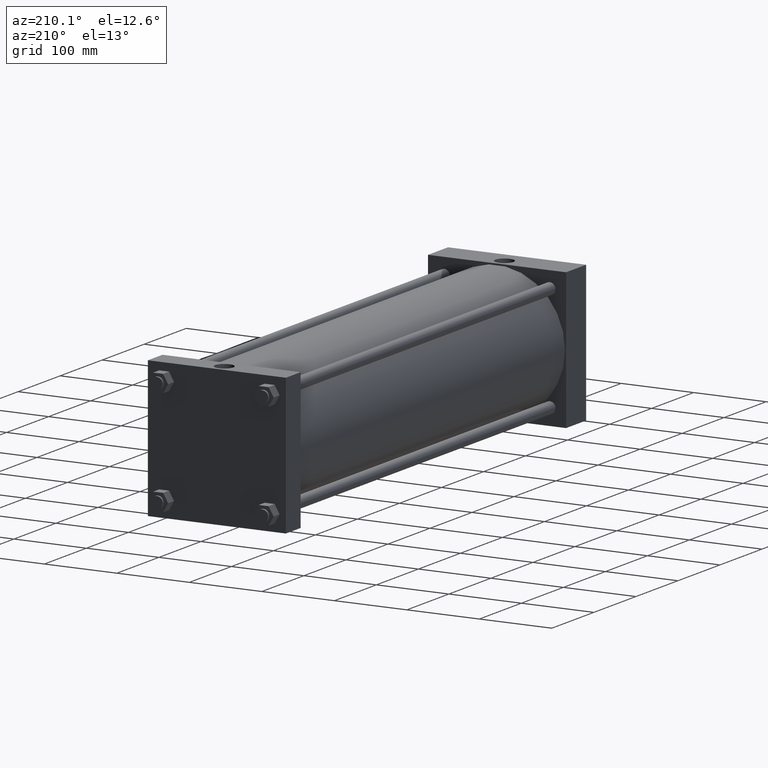
[diagram: clean part render]
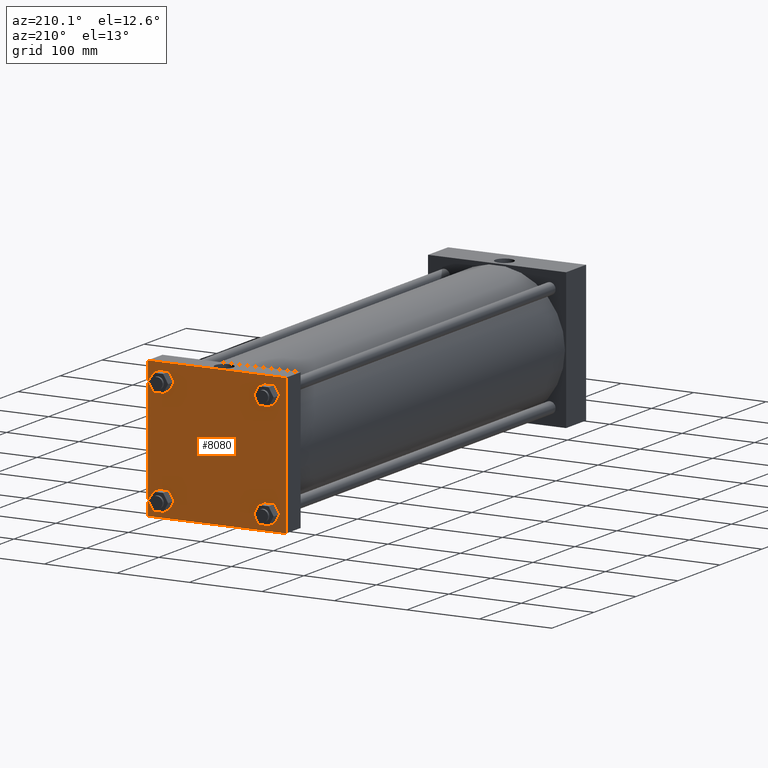
[diagram: same view with one face highlighted and labeled with its STEP entity id]
A machine part, auxiliary view. The second image highlights one B-rep face of the part: STEP entity #8080.
In plain terms, the highlighted planar face has unit normal (0, -1, 0).
Its self-contained STEP definition (entity closure, byte-faithful):
#2416=FACE_OUTER_BOUND('',#2421,.T.);
#2417=FACE_BOUND('',#2422,.T.);
#2418=FACE_BOUND('',#2423,.T.);
#2419=FACE_BOUND('',#2424,.T.);
#2420=FACE_BOUND('',#2425,.T.);
#2421=EDGE_LOOP('',(#2426,#2427,#2428,#2429,#2430,#2431));
#2422=EDGE_LOOP('',(#2474,#2475,#2476,#2477,#2478,#2479));
#2423=EDGE_LOOP('',(#2522,#2523,#2524,#2525,#2526,#2527));
#2424=EDGE_LOOP('',(#2570,#2571,#2572,#2573));
#2425=EDGE_LOOP('',(#2602,#2603,#2604,#2605,#2606,#2607));
#2426=ORIENTED_EDGE('',*,*,#2432,.F.);
#2427=ORIENTED_EDGE('',*,*,#2441,.F.);
#2428=ORIENTED_EDGE('',*,*,#2448,.F.);
#2429=ORIENTED_EDGE('',*,*,#2455,.F.);
#2430=ORIENTED_EDGE('',*,*,#2462,.F.);
#2431=ORIENTED_EDGE('',*,*,#2469,.F.);
#2432=EDGE_CURVE('',#2437,#2438,#2433,.T.);
#2433=LINE('',#2434,#2435);
#2434=CARTESIAN_POINT('',(6.589691458E+001,7.620000000E+002,8.467724088E+001));
#2435=VECTOR('',#2436,1.0E+000);
#2436=DIRECTION('',(4.9999999836129E-001,0.0E+000,8.66025404730548E-001));
#2437=VERTEX_POINT('',#2439);
#2438=VERTEX_POINT('',#2440);
#2439=CARTESIAN_POINT('',(5.902285023E+001,7.620000000E+002,7.277100000E+001));
#2440=CARTESIAN_POINT('',(6.589691458E+001,7.620000000E+002,8.467724088E+001));
#2441=EDGE_CURVE('',#2446,#2437,#2442,.T.);
#2442=LINE('',#2443,#2444);
#2443=CARTESIAN_POINT('',(6.589691458E+001,7.620000000E+002,6.086475912E+001));
#2444=VECTOR('',#2445,1.0E+000);
#2445=DIRECTION('',(-4.99999998361291E-001,0.0E+000,
   8.66025404730548E-001));
#2446=VERTEX_POINT('',#2447);
#2447=CARTESIAN_POINT('',(6.589691458E+001,7.620000000E+002,6.086475912E+001));
#2448=EDGE_CURVE('',#2453,#2446,#2449,.T.);
#2449=LINE('',#2450,#2451);
#2450=CARTESIAN_POINT('',(6.589691458E+001,7.620000000E+002,6.086475912E+001));
#2451=VECTOR('',#2452,1.0E+000);
#2452=DIRECTION('',(-1.0E+000,0.0E+000,0.0E+000));
#2453=VERTEX_POINT('',#2454);
#2454=CARTESIAN_POINT('',(7.964508542E+001,7.620000000E+002,6.086475912E+001));
#2455=EDGE_CURVE('',#2460,#2453,#2456,.T.);
#2456=LINE('',#2457,#2458);
#2457=CARTESIAN_POINT('',(8.651914977E+001,7.620000000E+002,7.277100000E+001));
#2458=VECTOR('',#2459,1.0E+000);
#2459=DIRECTION('',(-4.9999999836129E-001,0.0E+000,
   -8.66025404730549E-001));
#2460=VERTEX_POINT('',#2461);
#2461=CARTESIAN_POINT('',(8.651914977E+001,7.620000000E+002,7.277100000E+001));
#2462=EDGE_CURVE('',#2467,#2460,#2463,.T.);
#2463=LINE('',#2464,#2465);
#2464=CARTESIAN_POINT('',(8.651914977E+001,7.620000000E+002,7.277100000E+001));
#2465=VECTOR('',#2466,1.0E+000);
#2466=DIRECTION('',(4.9999999836129E-001,0.0E+000,-8.66025404730548E-001));
#2467=VERTEX_POINT('',#2468);
#2468=CARTESIAN_POINT('',(7.964508542E+001,7.620000000E+002,8.467724088E+001));
#2469=EDGE_CURVE('',#2438,#2467,#2470,.T.);
#2470=LINE('',#2471,#2472);
#2471=CARTESIAN_POINT('',(6.589691458E+001,7.620000000E+002,8.467724088E+001));
#2472=VECTOR('',#2473,1.0E+000);
#2473=DIRECTION('',(1.0E+000,0.0E+000,0.0E+000));
#2474=ORIENTED_EDGE('',*,*,#2480,.F.);
#2475=ORIENTED_EDGE('',*,*,#2489,.F.);
#2476=ORIENTED_EDGE('',*,*,#2496,.F.);
#2477=ORIENTED_EDGE('',*,*,#2503,.F.);
#2478=ORIENTED_EDGE('',*,*,#2510,.F.);
#2479=ORIENTED_EDGE('',*,*,#2517,.F.);
#2480=EDGE_CURVE('',#2485,#2486,#2481,.T.);
#2481=LINE('',#2482,#2483);
#2482=CARTESIAN_POINT('',(-7.964508542E+001,7.620000000E+002,8.467724088E+001));
#2483=VECTOR('',#2484,1.0E+000);
#2484=DIRECTION('',(4.9999999836129E-001,0.0E+000,8.66025404730548E-001));
#2485=VERTEX_POINT('',#2487);
#2486=VERTEX_POINT('',#2488);
#2487=CARTESIAN_POINT('',(-8.651914977E+001,7.620000000E+002,7.277100000E+001));
#2488=CARTESIAN_POINT('',(-7.964508542E+001,7.620000000E+002,8.467724088E+001));
#2489=EDGE_CURVE('',#2494,#2485,#2490,.T.);
#2490=LINE('',#2491,#2492);
#2491=CARTESIAN_POINT('',(-7.964508542E+001,7.620000000E+002,6.086475912E+001));
#2492=VECTOR('',#2493,1.0E+000);
#2493=DIRECTION('',(-4.99999998361291E-001,0.0E+000,
   8.66025404730548E-001));
#2494=VERTEX_POINT('',#2495);
#2495=CARTESIAN_POINT('',(-7.964508542E+001,7.620000000E+002,6.086475912E+001));
#2496=EDGE_CURVE('',#2501,#2494,#2497,.T.);
#2497=LINE('',#2498,#2499);
#2498=CARTESIAN_POINT('',(-7.964508542E+001,7.620000000E+002,6.086475912E+001));
#2499=VECTOR('',#2500,1.0E+000);
#2500=DIRECTION('',(-1.0E+000,0.0E+000,0.0E+000));
#2501=VERTEX_POINT('',#2502);
#2502=CARTESIAN_POINT('',(-6.589691458E+001,7.620000000E+002,6.086475912E+001));
#2503=EDGE_CURVE('',#2508,#2501,#2504,.T.);
#2504=LINE('',#2505,#2506);
#2505=CARTESIAN_POINT('',(-5.902285023E+001,7.620000000E+002,7.277100000E+001));
#2506=VECTOR('',#2507,1.0E+000);
#2507=DIRECTION('',(-4.9999999836129E-001,0.0E+000,
   -8.66025404730549E-001));
#2508=VERTEX_POINT('',#2509);
#2509=CARTESIAN_POINT('',(-5.902285023E+001,7.620000000E+002,7.277100000E+001));
#2510=EDGE_CURVE('',#2515,#2508,#2511,.T.);
#2511=LINE('',#2512,#2513);
#2512=CARTESIAN_POINT('',(-5.902285023E+001,7.620000000E+002,7.277100000E+001));
#2513=VECTOR('',#2514,1.0E+000);
#2514=DIRECTION('',(4.9999999836129E-001,0.0E+000,-8.66025404730548E-001));
#2515=VERTEX_POINT('',#2516);
#2516=CARTESIAN_POINT('',(-6.589691458E+001,7.620000000E+002,8.467724088E+001));
#2517=EDGE_CURVE('',#2486,#2515,#2518,.T.);
#2518=LINE('',#2519,#2520);
#2519=CARTESIAN_POINT('',(-7.964508542E+001,7.620000000E+002,8.467724088E+001));
#2520=VECTOR('',#2521,1.0E+000);
#2521=DIRECTION('',(1.0E+000,0.0E+000,0.0E+000));
#2522=ORIENTED_EDGE('',*,*,#2528,.F.);
#2523=ORIENTED_EDGE('',*,*,#2537,.F.);
#2524=ORIENTED_EDGE('',*,*,#2544,.F.);
#2525=ORIENTED_EDGE('',*,*,#2551,.F.);
#2526=ORIENTED_EDGE('',*,*,#2558,.F.);
#2527=ORIENTED_EDGE('',*,*,#2565,.F.);
#2528=EDGE_CURVE('',#2533,#2534,#2529,.T.);
#2529=LINE('',#2530,#2531);
#2530=CARTESIAN_POINT('',(-7.964508542E+001,7.620000000E+002,-6.086475912E+001));
#2531=VECTOR('',#2532,1.0E+000);
#2532=DIRECTION('',(4.9999999836129E-001,0.0E+000,8.66025404730549E-001));
#2533=VERTEX_POINT('',#2535);
#2534=VERTEX_POINT('',#2536);
#2535=CARTESIAN_POINT('',(-8.651914977E+001,7.620000000E+002,-7.277100000E+001));
#2536=CARTESIAN_POINT('',(-7.964508542E+001,7.620000000E+002,-6.086475912E+001));
#2537=EDGE_CURVE('',#2542,#2533,#2538,.T.);
#2538=LINE('',#2539,#2540);
#2539=CARTESIAN_POINT('',(-7.964508542E+001,7.620000000E+002,-8.467724088E+001));
#2540=VECTOR('',#2541,1.0E+000);
#2541=DIRECTION('',(-4.99999998361291E-001,0.0E+000,
   8.66025404730548E-001));
#2542=VERTEX_POINT('',#2543);
#2543=CARTESIAN_POINT('',(-7.964508542E+001,7.620000000E+002,-8.467724088E+001));
#2544=EDGE_CURVE('',#2549,#2542,#2545,.T.);
#2545=LINE('',#2546,#2547);
#2546=CARTESIAN_POINT('',(-7.964508542E+001,7.620000000E+002,-8.467724088E+001));
#2547=VECTOR('',#2548,1.0E+000);
#2548=DIRECTION('',(-1.0E+000,0.0E+000,0.0E+000));
#2549=VERTEX_POINT('',#2550);
#2550=CARTESIAN_POINT('',(-6.589691458E+001,7.620000000E+002,-8.467724088E+001));
#2551=EDGE_CURVE('',#2556,#2549,#2552,.T.);
#2552=LINE('',#2553,#2554);
#2553=CARTESIAN_POINT('',(-5.902285023E+001,7.620000000E+002,-7.277100000E+001));
#2554=VECTOR('',#2555,1.0E+000);
#2555=DIRECTION('',(-4.99999998361289E-001,0.0E+000,
   -8.66025404730549E-001));
#2556=VERTEX_POINT('',#2557);
#2557=CARTESIAN_POINT('',(-5.902285023E+001,7.620000000E+002,-7.277100000E+001));
#2558=EDGE_CURVE('',#2563,#2556,#2559,.T.);
#2559=LINE('',#2560,#2561);
#2560=CARTESIAN_POINT('',(-5.902285023E+001,7.620000000E+002,-7.277100000E+001));
#2561=VECTOR('',#2562,1.0E+000);
#2562=DIRECTION('',(4.9999999836129E-001,0.0E+000,-8.66025404730548E-001));
#2563=VERTEX_POINT('',#2564);
#2564=CARTESIAN_POINT('',(-6.589691458E+001,7.620000000E+002,-6.086475912E+001));
#2565=EDGE_CURVE('',#2534,#2563,#2566,.T.);
#2566=LINE('',#2567,#2568);
#2567=CARTESIAN_POINT('',(-7.964508542E+001,7.620000000E+002,-6.086475912E+001));
#2568=VECTOR('',#2569,1.0E+000);
#2569=DIRECTION('',(1.0E+000,0.0E+000,0.0E+000));
#2570=ORIENTED_EDGE('',*,*,#2574,.F.);
#2571=ORIENTED_EDGE('',*,*,#2583,.T.);
#2572=ORIENTED_EDGE('',*,*,#2590,.F.);
#2573=ORIENTED_EDGE('',*,*,#2597,.F.);
#2574=EDGE_CURVE('',#2579,#2580,#2575,.T.);
#2575=LINE('',#2576,#2577);
#2576=CARTESIAN_POINT('',(9.525000000E+001,7.620000000E+002,-9.525000000E+001));
#2577=VECTOR('',#2578,1.0E+000);
#2578=DIRECTION('',(0.0E+000,0.0E+000,1.0E+000));
#2579=VERTEX_POINT('',#2581);
#2580=VERTEX_POINT('',#2582);
#2581=CARTESIAN_POINT('',(9.525000000E+001,7.620000000E+002,-9.525000000E+001));
#2582=CARTESIAN_POINT('',(9.525000000E+001,7.620000000E+002,9.525000000E+001));
#2583=EDGE_CURVE('',#2579,#2588,#2584,.T.);
#2584=LINE('',#2585,#2586);
#2585=CARTESIAN_POINT('',(9.525000000E+001,7.620000000E+002,-9.525000000E+001));
#2586=VECTOR('',#2587,1.0E+000);
#2587=DIRECTION('',(-1.0E+000,0.0E+000,0.0E+000));
#2588=VERTEX_POINT('',#2589);
#2589=CARTESIAN_POINT('',(-9.525000000E+001,7.620000000E+002,-9.525000000E+001));
#2590=EDGE_CURVE('',#2595,#2588,#2591,.T.);
#2591=LINE('',#2592,#2593);
#2592=CARTESIAN_POINT('',(-9.525000000E+001,7.620000000E+002,9.525000000E+001));
#2593=VECTOR('',#2594,1.0E+000);
#2594=DIRECTION('',(0.0E+000,0.0E+000,-1.0E+000));
#2595=VERTEX_POINT('',#2596);
#2596=CARTESIAN_POINT('',(-9.525000000E+001,7.620000000E+002,9.525000000E+001));
#2597=EDGE_CURVE('',#2580,#2595,#2598,.T.);
#2598=LINE('',#2599,#2600);
#2599=CARTESIAN_POINT('',(9.525000000E+001,7.620000000E+002,9.525000000E+001));
#2600=VECTOR('',#2601,1.0E+000);
#2601=DIRECTION('',(-1.0E+000,0.0E+000,0.0E+000));
#2602=ORIENTED_EDGE('',*,*,#2608,.F.);
#2603=ORIENTED_EDGE('',*,*,#2617,.F.);
#2604=ORIENTED_EDGE('',*,*,#2624,.F.);
#2605=ORIENTED_EDGE('',*,*,#2631,.F.);
#2606=ORIENTED_EDGE('',*,*,#2638,.F.);
#2607=ORIENTED_EDGE('',*,*,#2645,.F.);
#2608=EDGE_CURVE('',#2613,#2614,#2609,.T.);
#2609=LINE('',#2610,#2611);
#2610=CARTESIAN_POINT('',(7.964508542E+001,7.620000000E+002,-8.467724088E+001));
#2611=VECTOR('',#2612,1.0E+000);
#2612=DIRECTION('',(-4.9999999836129E-001,0.0E+000,
   -8.66025404730549E-001));
#2613=VERTEX_POINT('',#2615);
#2614=VERTEX_POINT('',#2616);
#2615=CARTESIAN_POINT('',(8.651914977E+001,7.620000000E+002,-7.277100000E+001));
#2616=CARTESIAN_POINT('',(7.964508542E+001,7.620000000E+002,-8.467724088E+001));
#2617=EDGE_CURVE('',#2622,#2613,#2618,.T.);
#2618=LINE('',#2619,#2620);
#2619=CARTESIAN_POINT('',(7.964508542E+001,7.620000000E+002,-6.086475912E+001));
#2620=VECTOR('',#2621,1.0E+000);
#2621=DIRECTION('',(4.99999998361291E-001,0.0E+000,
   -8.66025404730548E-001));
#2622=VERTEX_POINT('',#2623);
#2623=CARTESIAN_POINT('',(7.964508542E+001,7.620000000E+002,-6.086475912E+001));
#2624=EDGE_CURVE('',#2629,#2622,#2625,.T.);
#2625=LINE('',#2626,#2627);
#2626=CARTESIAN_POINT('',(7.964508542E+001,7.620000000E+002,-6.086475912E+001));
#2627=VECTOR('',#2628,1.0E+000);
#2628=DIRECTION('',(1.0E+000,0.0E+000,0.0E+000));
#2629=VERTEX_POINT('',#2630);
#2630=CARTESIAN_POINT('',(6.589691458E+001,7.620000000E+002,-6.086475912E+001));
#2631=EDGE_CURVE('',#2636,#2629,#2632,.T.);
#2632=LINE('',#2633,#2634);
#2633=CARTESIAN_POINT('',(5.902285023E+001,7.620000000E+002,-7.277100000E+001));
#2634=VECTOR('',#2635,1.0E+000);
#2635=DIRECTION('',(4.99999998361289E-001,0.0E+000,8.66025404730549E-001));
#2636=VERTEX_POINT('',#2637);
#2637=CARTESIAN_POINT('',(5.902285023E+001,7.620000000E+002,-7.277100000E+001));
#2638=EDGE_CURVE('',#2643,#2636,#2639,.T.);
#2639=LINE('',#2640,#2641);
#2640=CARTESIAN_POINT('',(5.902285023E+001,7.620000000E+002,-7.277100000E+001));
#2641=VECTOR('',#2642,1.0E+000);
#2642=DIRECTION('',(-4.9999999836129E-001,0.0E+000,8.66025404730548E-001));
#2643=VERTEX_POINT('',#2644);
#2644=CARTESIAN_POINT('',(6.589691458E+001,7.620000000E+002,-8.467724088E+001));
#2645=EDGE_CURVE('',#2614,#2643,#2646,.T.);
#2646=LINE('',#2647,#2648);
#2647=CARTESIAN_POINT('',(7.964508542E+001,7.620000000E+002,-8.467724088E+001));
#2648=VECTOR('',#2649,1.0E+000);
#2649=DIRECTION('',(-1.0E+000,0.0E+000,0.0E+000));
#2650=PLANE('',#2651);
#2651=AXIS2_PLACEMENT_3D('',#2652,#2653,#2654);
#2652=CARTESIAN_POINT('',(9.525000000E+001,7.620000000E+002,-9.525000000E+001));
#2653=DIRECTION('',(0.0E+000,-1.0E+000,0.0E+000));
#2654=DIRECTION('',(0.0E+000,0.0E+000,-1.0E+000));
#8080=ADVANCED_FACE('',(#2416,#2417,#2418,#2419,#2420),#2650,.F.);